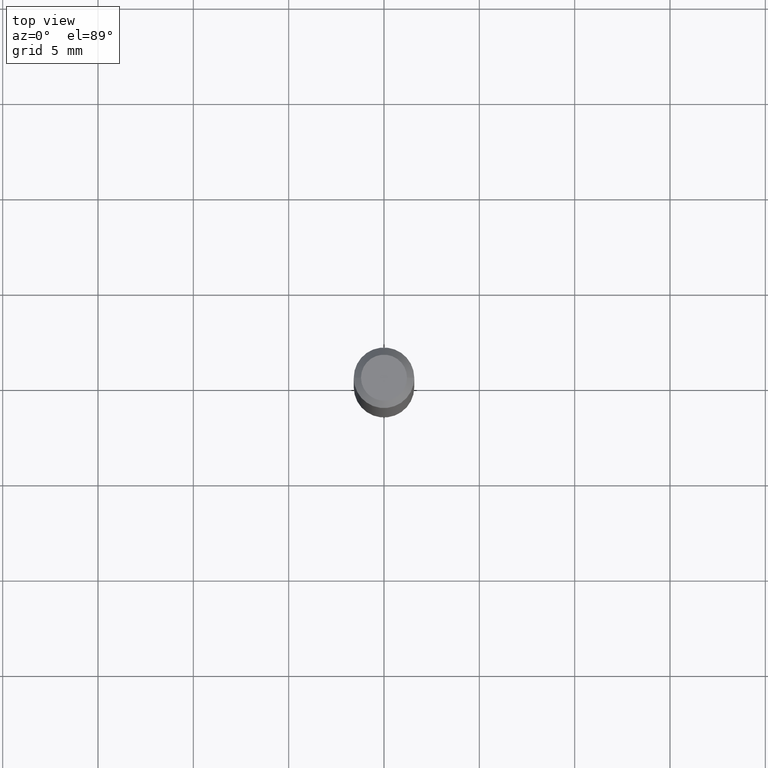
[diagram: clean part render]
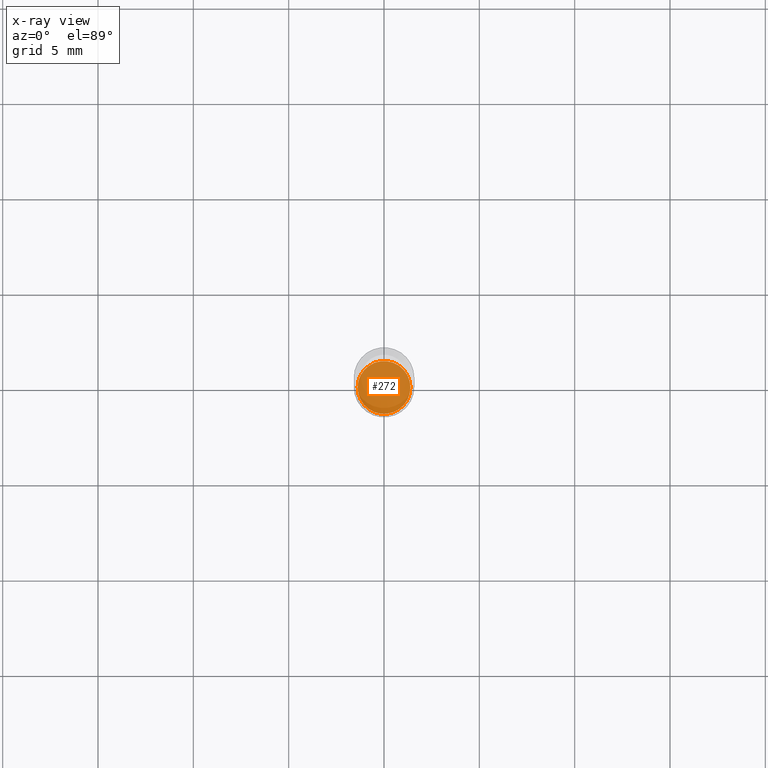
[diagram: x-ray — body ghosted, one internal face saturated and labeled with its STEP entity id]
A machine part, top view, then the same camera in x-ray: the body is ghosted and one INTERNAL B-rep face — a face not visible from any outside direction — is saturated and labeled: STEP entity #272.
In plain terms, the highlighted planar face has unit normal (-0, 0, 1).
Its self-contained STEP definition (entity closure, byte-faithful):
#36 = DIRECTION ( 'NONE',  ( 1.000000000000000000, -6.982962677686261977E-15, 0.000000000000000000 ) ) ;
#66 = ORIENTED_EDGE ( 'NONE', *, *, #465, .F. ) ;
#76 = CARTESIAN_POINT ( 'NONE',  ( 2.861198503236610065E-29, -4.085033166446480067E-15, -1.170000000000000151 ) ) ;
#80 = CARTESIAN_POINT ( 'NONE',  ( 0.05450000000000006228, -4.465604632380382045E-15, -1.170000000000000151 ) ) ;
#96 = ORIENTED_EDGE ( 'NONE', *, *, #343, .F. ) ;
#103 = AXIS2_PLACEMENT_3D ( 'NONE', #76, #150, #386 ) ;
#120 = CIRCLE ( 'NONE', #358, 0.05450000000000006228 ) ;
#150 = DIRECTION ( 'NONE',  ( -2.438088387897960049E-29, 3.491481338843145188E-15, 1.000000000000000000 ) ) ;
#195 = CARTESIAN_POINT ( 'NONE',  ( 2.861198503236610065E-29, -4.085033166446480067E-15, -1.170000000000000151 ) ) ;
#209 = CIRCLE ( 'NONE', #388, 0.05450000000000006228 ) ;
#231 = CARTESIAN_POINT ( 'NONE',  ( 2.861198503236610065E-29, -4.085033166446480067E-15, -1.170000000000000151 ) ) ;
#272 = ADVANCED_FACE ( 'NONE', ( #295 ), #472, .F. ) ;
#276 = DIRECTION ( 'NONE',  ( -2.445468806185136597E-29, 3.491481338843145583E-15, 1.000000000000000000 ) ) ;
#290 = EDGE_LOOP ( 'NONE', ( #96, #66 ) ) ;
#295 = FACE_OUTER_BOUND ( 'NONE', #290, .T. ) ;
#305 = DIRECTION ( 'NONE',  ( 1.000000000000000000, -6.982962677686261977E-15, 0.000000000000000000 ) ) ;
#307 = CARTESIAN_POINT ( 'NONE',  ( -0.05450000000000006228, -3.695138148283114316E-15, -1.170000000000000151 ) ) ;
#326 = VERTEX_POINT ( 'NONE', #80 ) ;
#343 = EDGE_CURVE ( 'NONE', #326, #442, #209, .T. ) ;
#358 = AXIS2_PLACEMENT_3D ( 'NONE', #195, #276, #305 ) ;
#386 = DIRECTION ( 'NONE',  ( 1.000000000000000000, -6.982962677686265922E-15, 4.876176775795935793E-29 ) ) ;
#388 = AXIS2_PLACEMENT_3D ( 'NONE', #231, #389, #36 ) ;
#389 = DIRECTION ( 'NONE',  ( -2.445468806185136597E-29, 3.491481338843145583E-15, 1.000000000000000000 ) ) ;
#442 = VERTEX_POINT ( 'NONE', #307 ) ;
#465 = EDGE_CURVE ( 'NONE', #442, #326, #120, .T. ) ;
#472 = PLANE ( 'NONE',  #103 ) ;